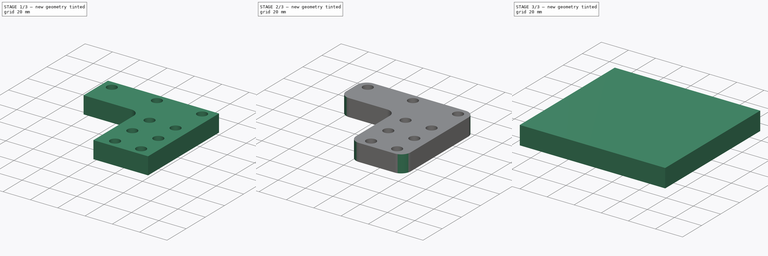
[diagram: build sequence overview — one tinted view per stage of 3, left to right]
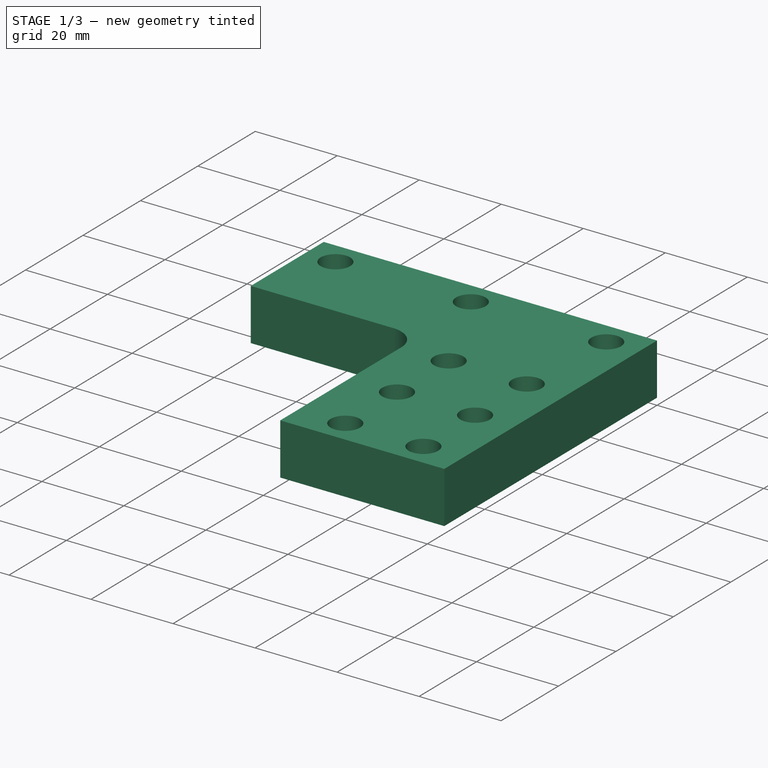
[diagram: stage 1 of 3 — iso view after this stage's code; geometry added in this stage tinted green]
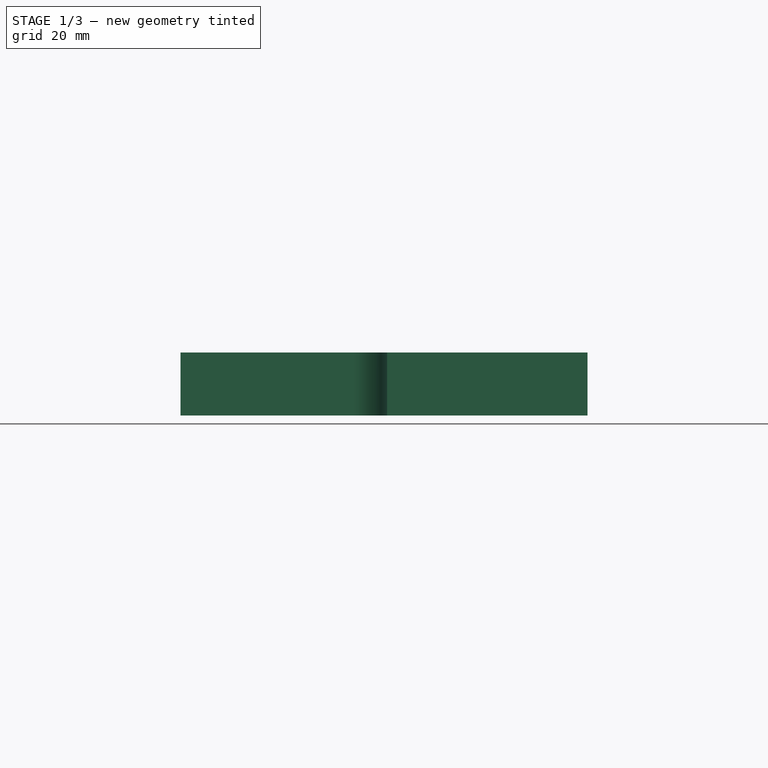
[diagram: stage 1 of 3 — front view after this stage's code; geometry added in this stage tinted green]
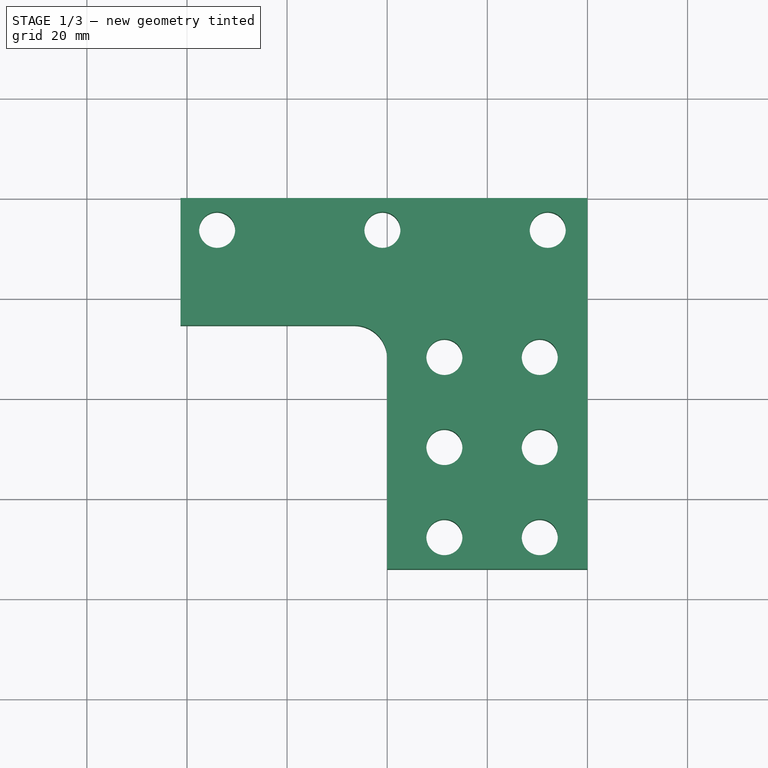
[diagram: stage 1 of 3 — top view after this stage's code; geometry added in this stage tinted green]
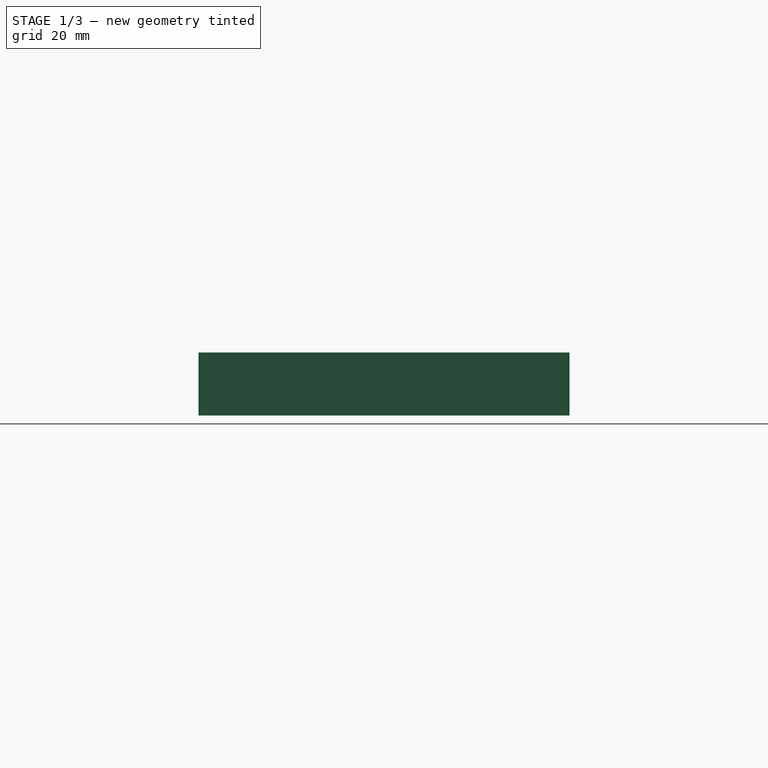
[diagram: stage 1 of 3 — right view after this stage's code; geometry added in this stage tinted green]
FCSTD DOCUMENT  (FreeCAD 0.17R13320 (Git))
Label: z_side_mount
License: All rights reserved
LicenseURL: http://en.wikipedia.org/wiki/All_rights_reserved
objects: Path::FeaturePython×12, Sketcher::SketchObject×2, Part::FeaturePython×2, PartDesign::Pad×1, PartDesign::Pocket×1, App::FeaturePython×1, PartDesign::Fillet×1, PartDesign::Body×1, Path::FeatureCompoundPython×1
note: 11 computed .brp shape members not serialized (recipe doc carries the construction recipe); baked Part::Feature solids carry a one-line shape summary decoded from their .brp

FEATURE [Sketcher::SketchObject] Sketch
  sketch-geometry (7):
    g0: LineSegment StartX=0 StartY=0 StartZ=0 EndX=0 EndY=-74.09 EndZ=0
    g1: LineSegment StartX=0 StartY=-74.09 StartZ=0 EndX=-40.005 EndY=-74.09 EndZ=0
    g2: LineSegment StartX=-40.005 StartY=-74.09 StartZ=0 EndX=-40.005 EndY=-32 EndZ=0
    g3: ArcOfCircle CenterX=-46.605 CenterY=-32 CenterZ=0 NormalX=0 NormalY=0 NormalZ=1 AngleXU=0 Radius=6.6 StartAngle=0 EndAngle=1.5708
    g4: LineSegment StartX=-46.605 StartY=-25.4 StartZ=0 EndX=-81.28 EndY=-25.4 EndZ=0
    g5: LineSegment StartX=-81.28 StartY=-25.4 StartZ=0 EndX=-81.28 EndY=0 EndZ=0
    g6: LineSegment StartX=-81.28 StartY=0 StartZ=0 EndX=0 EndY=0 EndZ=0
  constraints (21):
    c: Horizontal(g1)
    c: Coincident(g2,g1)
    c: Vertical(g2)
    c: Coincident(g4,g3)
    c: Horizontal(g4)
    c: Coincident(g5,g4)
    c: Vertical(g5)
    c: Horizontal(g6)
    c: Coincident(g5,g6)
    c: Coincident(g0,g6)
    c: Coincident(g0,g1)
    c: Coincident(g2,g3)
    c: Vertical(g0)
    c: DistanceX(g1,g1) = 40.005
    c: DistanceX(g6,g6) = 81.28
    c: DistanceY(g0,g0) = 74.09
    c: DistanceY(g5,g5) = 25.4
    c: DistanceY(g3,g2) = 0
    c: DistanceX(g3,g3) = 0
    c: Coincident(g0,g-1)
    c: DistanceY(g2,g-1) = 32
FEATURE [PartDesign::Pad] Pad
  Length = 12.6
  Length2 = 100
  Profile = -> Sketch
  Type = 0
FEATURE [Sketcher::SketchObject] Sketch001
  MapMode = 5
  Placement = pos=(0,0,12.6) rot=(0,0,1;0rad)
  Support = -> [Pad]
  sketch-geometry (9):
    g0: Circle CenterX=-73.9775 CenterY=-6.35 CenterZ=0 NormalX=0 NormalY=0 NormalZ=1 AngleXU=0 Radius=3.6
    g1: Circle CenterX=-7.9375 CenterY=-6.35 CenterZ=0 NormalX=0 NormalY=0 NormalZ=1 AngleXU=0 Radius=3.6
    g2: Circle CenterX=-40.9575 CenterY=-6.35 CenterZ=0 NormalX=0 NormalY=0 NormalZ=1 AngleXU=0 Radius=3.6
    g3: Circle CenterX=-28.575 CenterY=-31.75 CenterZ=0 NormalX=0 NormalY=0 NormalZ=1 AngleXU=0 Radius=3.6
    g4: Circle CenterX=-9.525 CenterY=-31.75 CenterZ=0 NormalX=0 NormalY=0 NormalZ=1 AngleXU=0 Radius=3.6
    g5: Circle CenterX=-28.575 CenterY=-49.75 CenterZ=0 NormalX=0 NormalY=0 NormalZ=1 AngleXU=0 Radius=3.6
    g6: Circle CenterX=-9.525 CenterY=-49.75 CenterZ=0 NormalX=0 NormalY=0 NormalZ=1 AngleXU=0 Radius=3.6
    g7: Circle CenterX=-28.575 CenterY=-67.75 CenterZ=0 NormalX=0 NormalY=0 NormalZ=1 AngleXU=0 Radius=3.6
    g8: Circle CenterX=-9.525 CenterY=-67.75 CenterZ=0 NormalX=0 NormalY=0 NormalZ=1 AngleXU=0 Radius=3.6
  constraints (27):
    c: Radius(g1) = 3.6
    c: Equal(g4,g1)
    c: Equal(g1,g2)
    c: Equal(g2,g0)
    c: Equal(g0,g3)
    c: Equal(g3,g5)
    c: Equal(g5,g6)
    c: Equal(g6,g8)
    c: Equal(g8,g7)
    c: DistanceX(g0,g1) = 66.04
    c: DistanceX(g0,g2) = 33.02
    c: DistanceY(g2,g0) = 0
    c: DistanceY(g2,g1) = 0
    c: DistanceX(g1,g-1) = 7.9375
    c: DistanceX(g7,g8) = 19.05
    c: DistanceY(g7,g8) = 0
    c: DistanceX(g8,g4) = 0
    c: DistanceY(g3,g4) = 0
    c: DistanceX(g7,g3) = 0
    c: DistanceY(g8,g4) = 36
    c: DistanceY(g5,g4) = 18
    c: DistanceY(g1,g-1) = 6.35
    c: DistanceX(g4,g1) = 1.5875
    c: DistanceY(g4,g1) = 25.4
    c: DistanceY(g5,g6) = 0
    c: DistanceX(g3,g5) = 0
    c: DistanceX(g4,g6) = 0
FEATURE [PartDesign::Pocket] Pocket
  BaseFeature = -> Pad
  Length = 5
  Length2 = 100
  Profile = -> Sketch001
  Type = 1
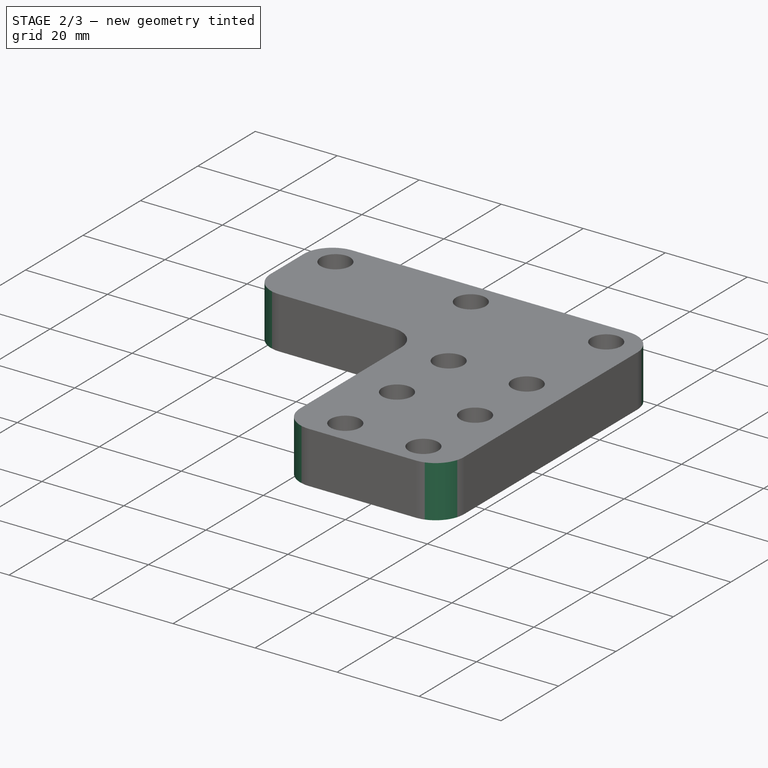
[diagram: stage 2 of 3 — iso view after this stage's code; geometry added in this stage tinted green]
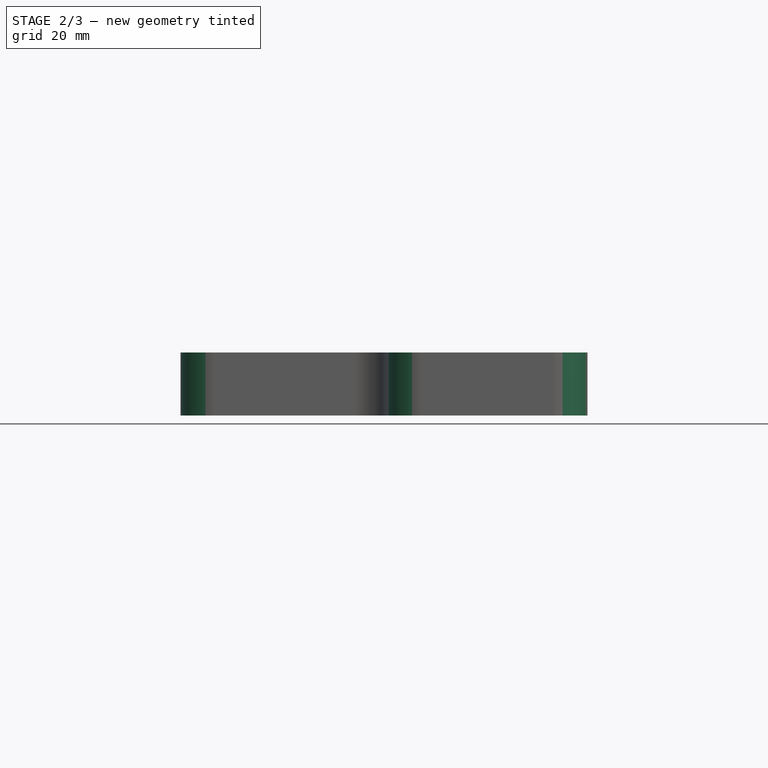
[diagram: stage 2 of 3 — front view after this stage's code; geometry added in this stage tinted green]
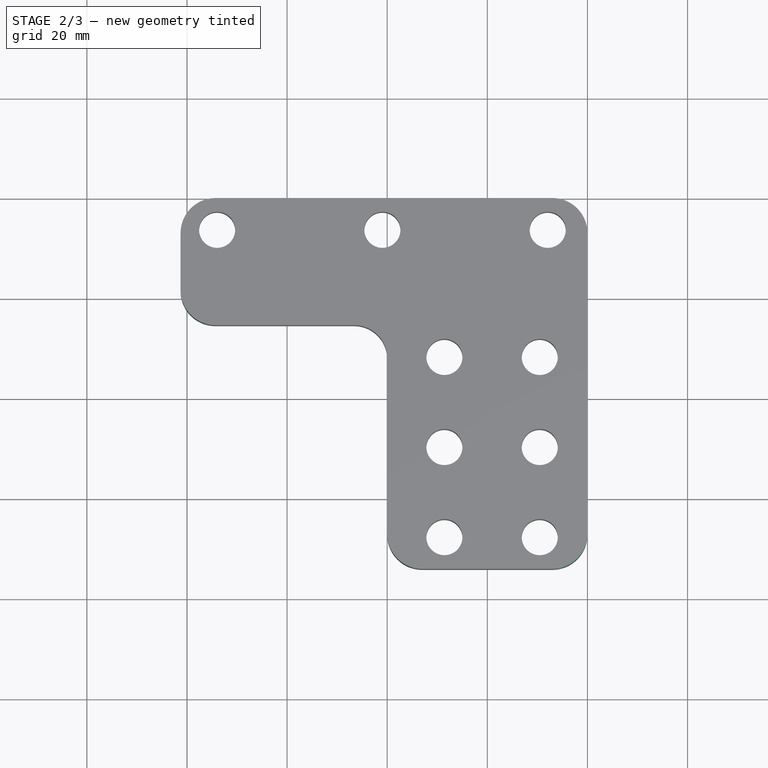
[diagram: stage 2 of 3 — top view after this stage's code; geometry added in this stage tinted green]
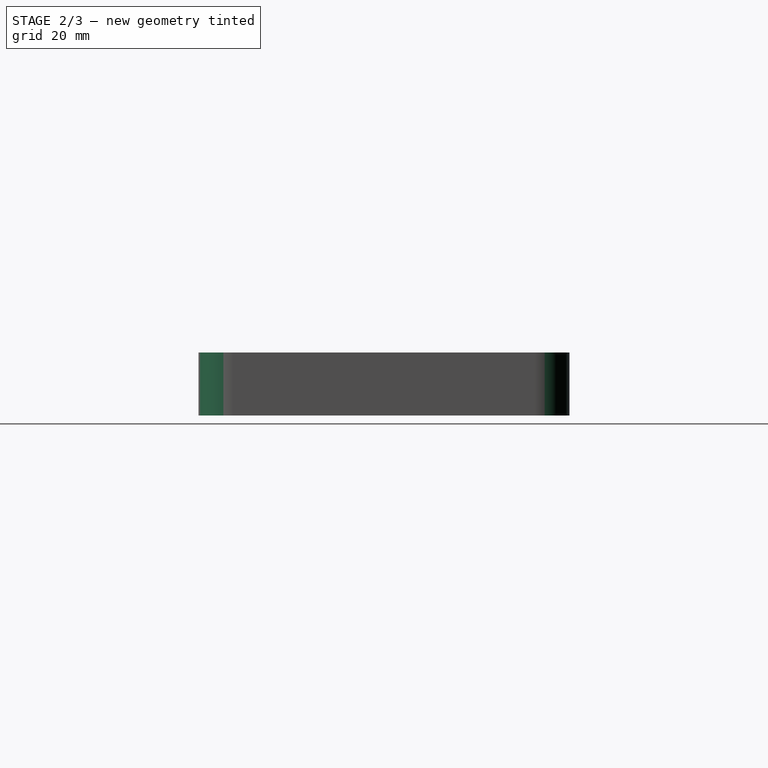
[diagram: stage 2 of 3 — right view after this stage's code; geometry added in this stage tinted green]
FEATURE [App::FeaturePython] SetupSheet  # Path/CAM operation (typed FeaturePython)
  ClearanceHeightExpression = StartDepth+SetupSheet.ClearanceHeightOffset
  ClearanceHeightOffset = 5
  FinalDepthExpression = OpFinalDepth
  HorizRapid = 0
  SafeHeightExpression = StartDepth+SetupSheet.SafeHeightOffset
  SafeHeightOffset = 3
  StartDepthExpression = OpStartDepth
  StepDownExpression = OpToolDiameter
  VertRapid = 0
FEATURE [Path::FeaturePython] Default_Tool  label="Default Tool"  # Path/CAM operation (typed FeaturePython)
  HorizFeed = 0
  HorizRapid = 0
  SpindleDir = 0
  SpindleSpeed = 0
  ToolNumber = 1
  VertFeed = 0
  VertRapid = 0
  expr: HorizRapid = SetupSheet.HorizRapid
  expr: VertRapid = SetupSheet.VertRapid
FEATURE [Path::FeaturePython] T3__8mm  label="T3: 8mm"  # Path/CAM operation (typed FeaturePython)
  HorizFeed = 0
  HorizRapid = 0
  SpindleDir = 0
  SpindleSpeed = 0
  ToolNumber = 3
  VertFeed = 0
  VertRapid = 0
  expr: HorizRapid = SetupSheet.HorizRapid
  expr: VertRapid = SetupSheet.VertRapid
FEATURE [Path::FeaturePython] T4__0_5inch  label="T4: 0.5inch"  # Path/CAM operation (typed FeaturePython)
  HorizFeed = 0
  HorizRapid = 0
  SpindleDir = 0
  SpindleSpeed = 0
  ToolNumber = 4
  VertFeed = 0
  VertRapid = 0
  expr: HorizRapid = SetupSheet.HorizRapid
  expr: VertRapid = SetupSheet.VertRapid
FEATURE [Path::FeaturePython] T5__6mm  label="T5: 6mm"  # Path/CAM operation (typed FeaturePython)
  HorizFeed = 0
  HorizRapid = 0
  SpindleDir = 0
  SpindleSpeed = 0
  ToolNumber = 5
  VertFeed = 0
  VertRapid = 0
  expr: HorizRapid = SetupSheet.HorizRapid
  expr: VertRapid = SetupSheet.VertRapid
FEATURE [Path::FeaturePython] T6__5mm  label="T6: 5mm"  # Path/CAM operation (typed FeaturePython)
  HorizFeed = 0
  HorizRapid = 0
  SpindleDir = 0
  SpindleSpeed = 0
  ToolNumber = 6
  VertFeed = 0
  VertRapid = 0
  expr: HorizRapid = SetupSheet.HorizRapid
  expr: VertRapid = SetupSheet.VertRapid
FEATURE [Path::FeaturePython] T7__4mm  label="T7: 4mm"  # Path/CAM operation (typed FeaturePython)
  HorizFeed = 0
  HorizRapid = 0
  SpindleDir = 0
  SpindleSpeed = 0
  ToolNumber = 7
  VertFeed = 0
  VertRapid = 0
  expr: HorizRapid = SetupSheet.HorizRapid
  expr: VertRapid = SetupSheet.VertRapid
FEATURE [Path::FeaturePython] T8__3mm  label="T8: 3mm"  # Path/CAM operation (typed FeaturePython)
  HorizFeed = 0
  HorizRapid = 0
  SpindleDir = 0
  SpindleSpeed = 0
  ToolNumber = 8
  VertFeed = 0
  VertRapid = 0
  expr: HorizRapid = SetupSheet.HorizRapid
  expr: VertRapid = SetupSheet.VertRapid
FEATURE [Path::FeaturePython] T9__2mm  label="T9: 2mm"  # Path/CAM operation (typed FeaturePython)
  HorizFeed = 0
  HorizRapid = 0
  SpindleDir = 0
  SpindleSpeed = 0
  ToolNumber = 9
  VertFeed = 0
  VertRapid = 0
  expr: HorizRapid = SetupSheet.HorizRapid
  expr: VertRapid = SetupSheet.VertRapid
FEATURE [Path::FeaturePython] Contour  # Path/CAM operation (typed FeaturePython)
  Active = true
  AreaParams:
    OpenMode = 0
    Angle = 45.0
    MinArcPoints = 4
    Coplanar = 2
    Tolerance = 1e-07
    CleanDistance = 0.0
    PocketExtraOffset = 0.0
    RoundPrecision = 0.0
    AngleShift = 0.0
    SubjectFill = 0
    PocketMode = 0
    Simplify = False
    SectionTolerance = 1e-06
    MaxArcPoints = 100
    Offset = 4.0
    Accuracy = 0.01
    PocketStepover = 0.0
    ClipFill = 0
    ToolRadius = 1.0
    Outline = False
    ClipperScale = 10000000.0
    FromCenter = False
    Explode = False
    EndType = 0
    Shift = 0.0
    ExtraPass = 0
    Project = False
    JoinType = 0
    Thicken = False
    Stepdown = 1.0
    SectionMode = 2
    MiterLimit = 2.0
    Deflection = 0.01
    Reorient = True
    FitArcs = True
    SectionCount = -1
    SectionOffset = 0.0
    Stepover = 0.0
    Unit = 1.0
    Fill = 0
  ClearanceHeight = 5
  Direction = 1
  FinalDepth = -14
  JoinType = 0
  MiterLimit = 0.1
  OffsetExtra = 0
  OpFinalDepth = -13.6
  OpStartDepth = 0
  OpToolDiameter = 8
  PathParams = {'resume_height': 3.0, 'feedrate': 0.0, 'verbose': True, 'orientation': 0, 'return_end': True, 'preamble': False, 'retraction': 5.0, 'feedrate_v': 0.0}
  SafeHeight = 3
  Side = 0
  StartDepth = 0
  StartPoint = (0,0,0)
  StepDown = 1
  ToolController = -> T3__8mm
  UseComp = true
  UseStartPoint = false
  expr: ClearanceHeight = StartDepth + SetupSheet.ClearanceHeightOffset
  expr: SafeHeight = StartDepth + SetupSheet.SafeHeightOffset
  expr: StartDepth = OpStartDepth
FEATURE [PartDesign::Fillet] Fillet
  Base = -> Pocket [Edge1,Edge5,Edge37,Edge8,Edge2]
  BaseFeature = -> Pocket
  Radius = 7
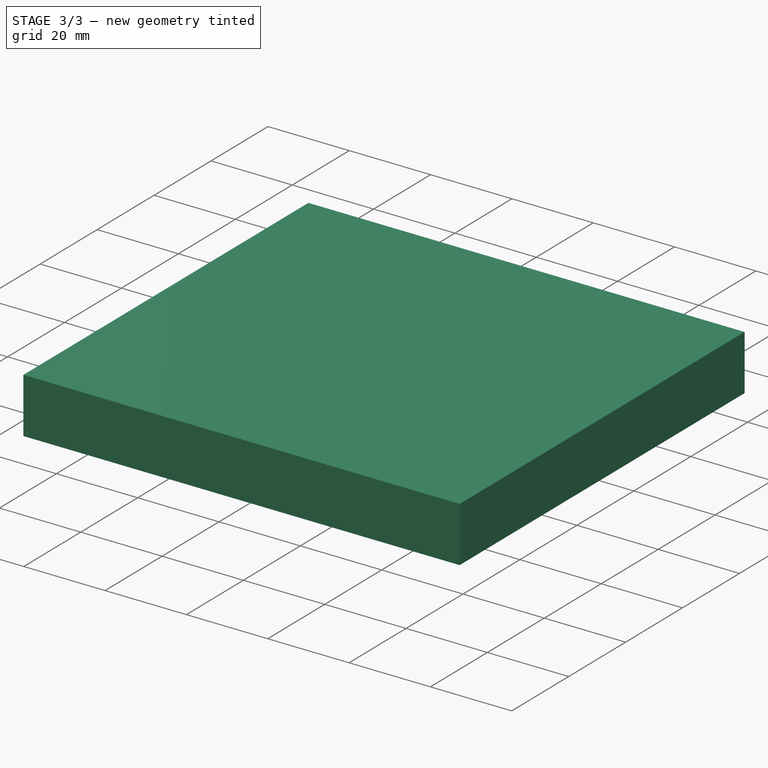
[diagram: stage 3 of 3 — iso view after this stage's code; geometry added in this stage tinted green]
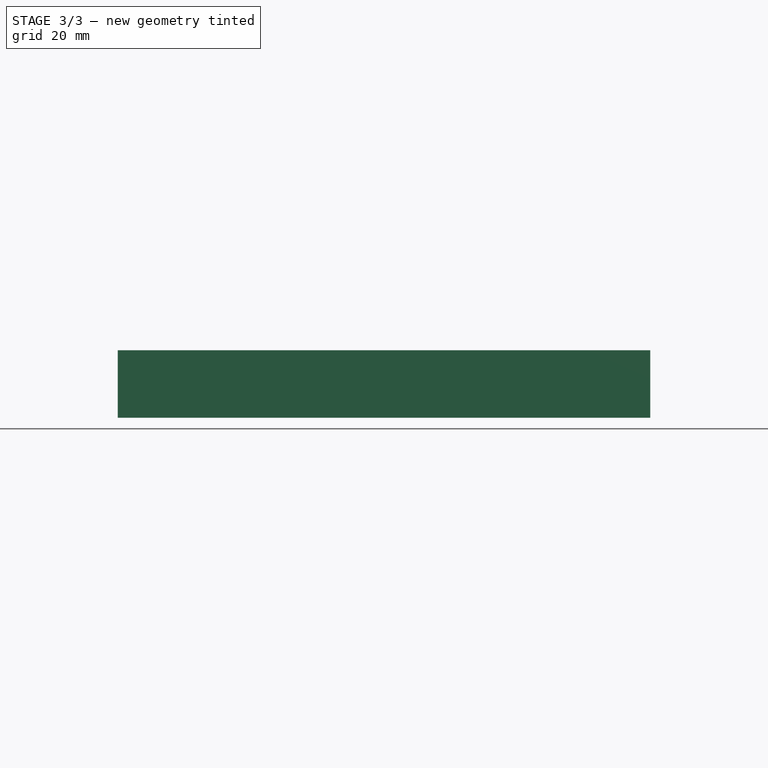
[diagram: stage 3 of 3 — front view after this stage's code; geometry added in this stage tinted green]
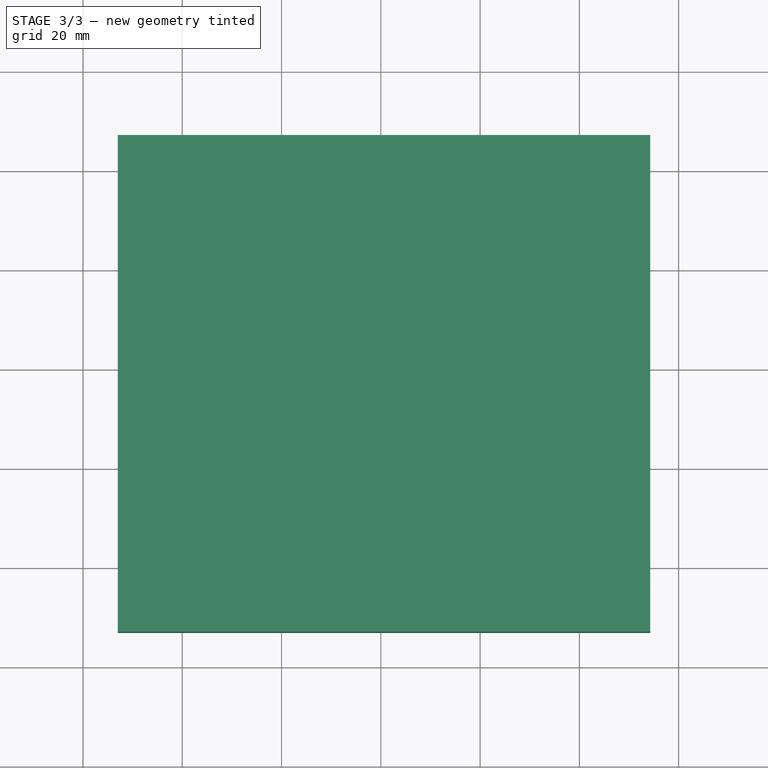
[diagram: stage 3 of 3 — top view after this stage's code; geometry added in this stage tinted green]
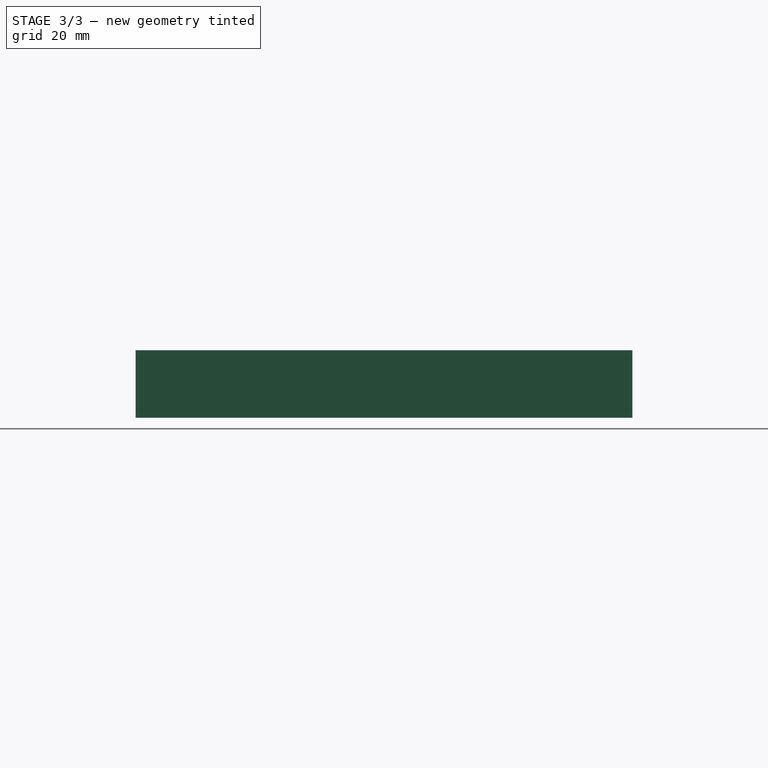
[diagram: stage 3 of 3 — right view after this stage's code; geometry added in this stage tinted green]
FEATURE [PartDesign::Body] Body
  Group = -> [Sketch,Pad,Sketch001,Pocket,Fillet]
  Origin = -> Origin
  Tip = -> Fillet
FEATURE [Part::FeaturePython] Clone  label="Base-Body"  # Draft clone (typed FeaturePython)
  AttacherType = Attacher::AttachEngine3D
  Fuse = false
  Objects = -> [Body]
  PathResource = Base
  Placement = pos=(0,0,-12.6) rot=(0,0,1;3.14159rad)
  Scale = (1,1,1)
FEATURE [Path::FeaturePython] Helix  # Path/CAM operation (typed FeaturePython)
  Active = true
  Base = -> [Clone]
  ClearanceHeight = 5
  Direction = 0
  FinalDepth = -14
  OpFinalDepth = -12.6
  OpStartDepth = 0
  OpToolDiameter = 6
  SafeHeight = 3
  StartDepth = 0
  StartSide = 0
  StepDown = 0.5
  StepOver = 90
  ToolController = -> T5__6mm
  expr: ClearanceHeight = StartDepth + SetupSheet.ClearanceHeightOffset
  expr: SafeHeight = StartDepth + SetupSheet.SafeHeightOffset
  expr: StartDepth = OpStartDepth
FEATURE [Part::FeaturePython] Stock001  # WARN: FeaturePython — macro-defined, semantics opaque (R4)
  Base = -> Body
  ExtXneg = 13
  ExtXpos = 13
  ExtYneg = 13
  ExtYpos = 13
  ExtZneg = 1
  ExtZpos = 0
  Placement = pos=(0,0,-12.6) rot=(0,0,1;3.14159rad)
  StockType = FromBase
FEATURE [Path::FeaturePython] TagDressup  # Path/CAM operation (typed FeaturePython)
  Angle = 45
  Base = -> Contour
  Disabled = [1,3,5,8,9,10]
  Height = 3.1
  Positions = (11) [(19.8978,78.0873,0),(-3.99909,57.0401,0),(-3.99726,36.9403,0),(-3.99543,16.8405,0),(18.2482,-3.99909,0),(40.7447,-3.99726,0),(63.2411,-3.99543,0),+4 more]
  Radius = 0
  SegmentationFactor = 50
  Width = 8.76
FEATURE [Path::FeatureCompoundPython] Operations  # Path/CAM operation (typed FeaturePython)
  Group = -> [Helix,TagDressup]
  UsePlacements = false
FEATURE [Path::FeaturePython] Job  # Path/CAM operation (typed FeaturePython)
  Base = -> Clone
  GeometryTolerance = 0.01
  Operations = -> Operations
  PostProcessor = 5
  SetupSheet = -> SetupSheet
  Stock = -> Stock001
  ToolController = -> [Default_Tool,T3__8mm,T4__0_5inch,T5__6mm,T6__5mm,T7__4mm,T8__3mm,T9__2mm]
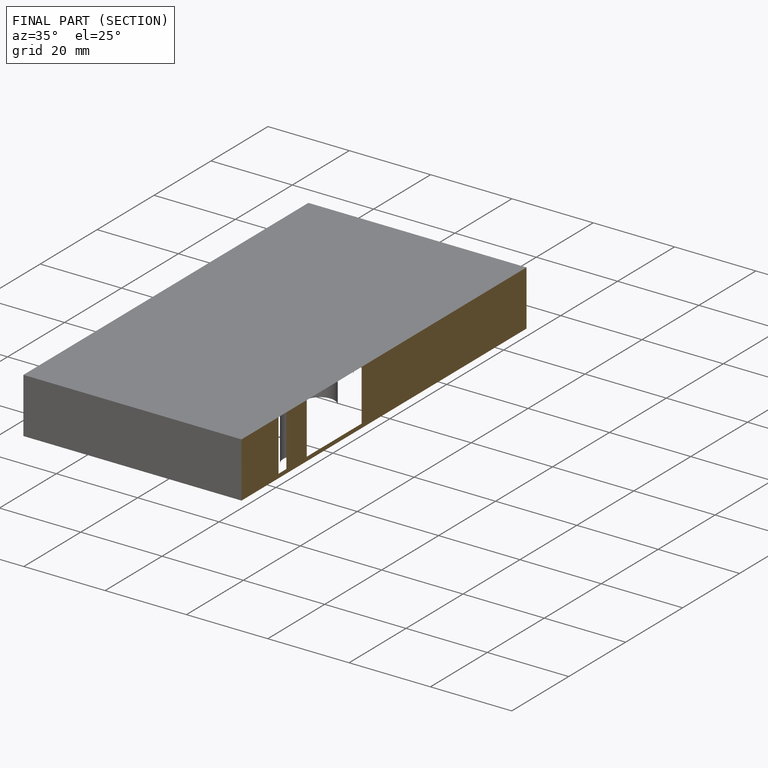
[diagram: finished part — half-section view (interior)]
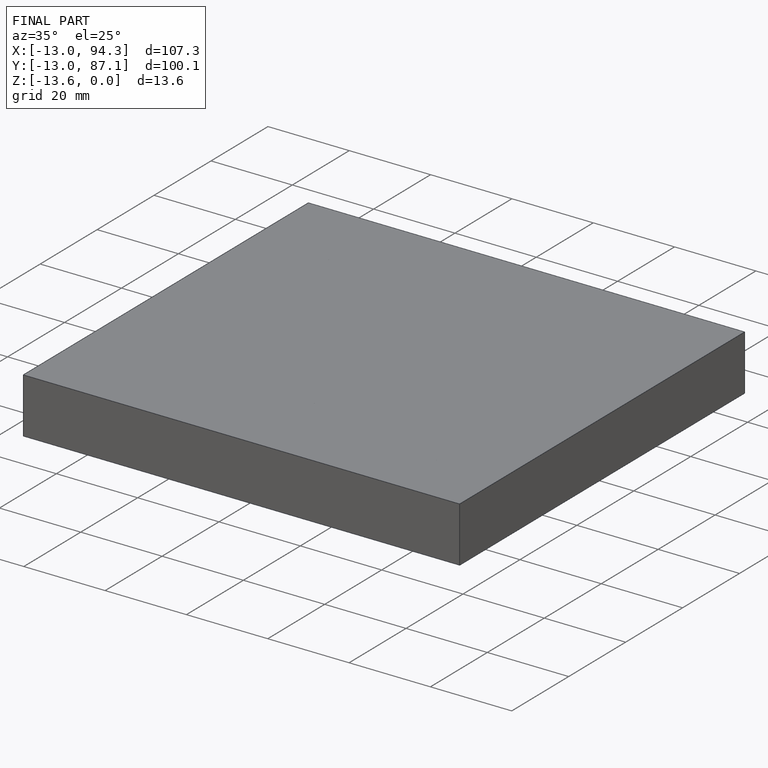
[diagram: finished part — iso view with bounding-box wireframe]
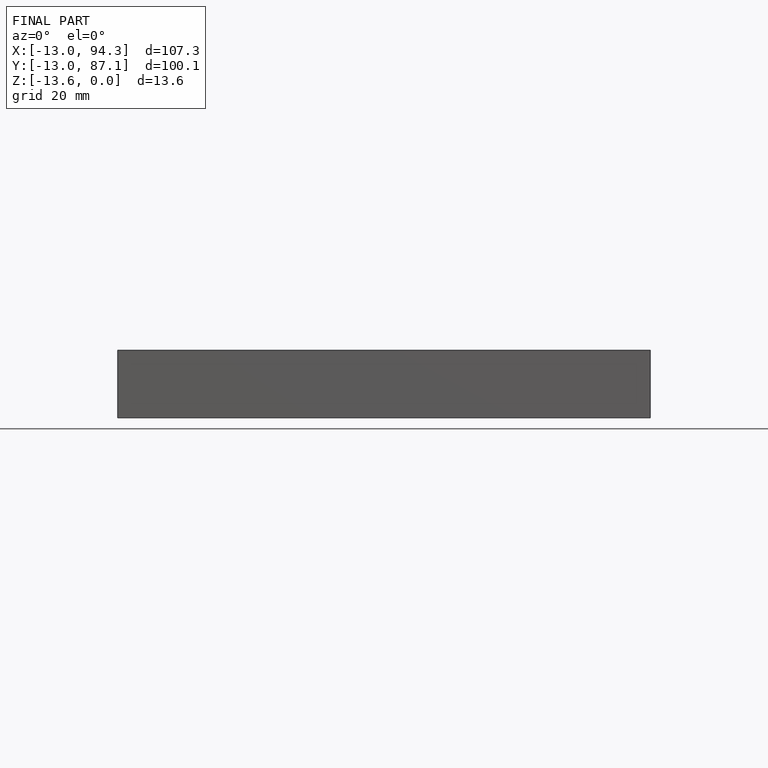
[diagram: finished part — front view with bounding-box wireframe]
